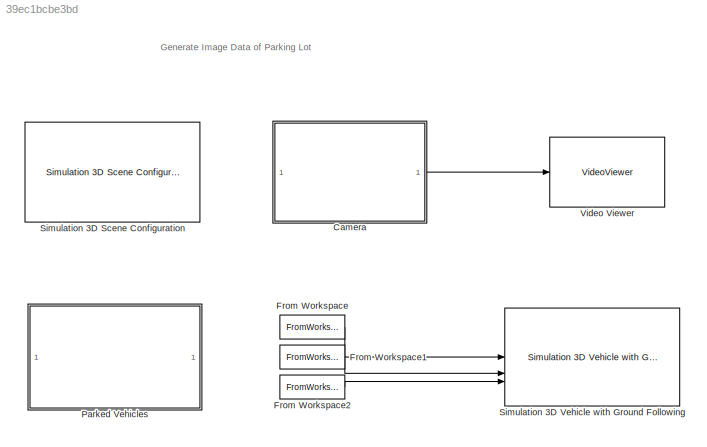
MODEL slx_39ec1bcbe3bd
KIND model
CONFIG AbsTol = auto
CONFIG EnableMultiTasking = off
CONFIG FixedStep = auto
CONFIG MaxStep = auto
CONFIG MinStep = auto
CONFIG RelTol = 1e-3
CONFIG SampleTimeConstraint = Unconstrained
CONFIG SolverName = VariableStepAuto
CONFIG StartTime = 0.0
CONFIG StopTime = 60
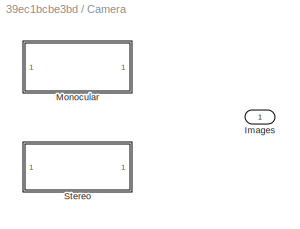
BLOCK [SubSystem] Camera
  Variant = on
BLOCK [Outport] Camera/Images
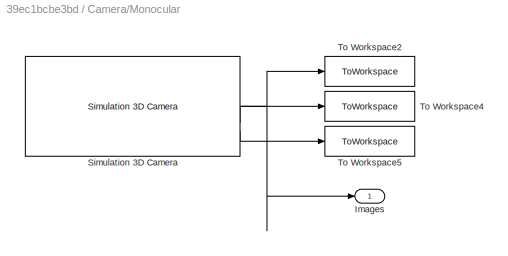
BLOCK [SubSystem] Camera/Monocular
  VariantControl = useMonoCamera == 1
BLOCK [Outport] Camera/Monocular/Images
BLOCK [Reference] Camera/Monocular/Simulation 3D Camera  REF=sim3dcameralib/Simulation 3D Camera
  LibrarySourceBlock = drivingsim3d/Simulation 3D Camera
  Priority = 1
  SourceBlock = sim3dcameralib/Simulation 3D Camera
  SourceType = Simulation 3D Camera
BLOCK [ToWorkspace] Camera/Monocular/To Workspace2
  FixptAsFi = on
  MaxDataPoints = inf
  SampleTime = -1
  SaveFormat = Timeseries
  VariableName = images
BLOCK [ToWorkspace] Camera/Monocular/To Workspace4
  FixptAsFi = on
  MaxDataPoints = inf
  SampleTime = -1
  SaveFormat = Timeseries
  VariableName = location
BLOCK [ToWorkspace] Camera/Monocular/To Workspace5
  FixptAsFi = on
  MaxDataPoints = inf
  SampleTime = -1
  SaveFormat = Timeseries
  VariableName = orientation
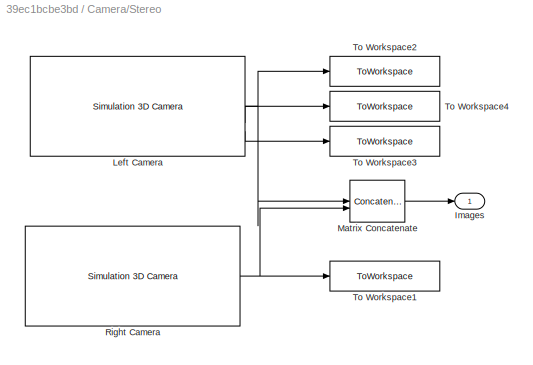
BLOCK [SubSystem] Camera/Stereo
  VariantControl = useMonoCamera == 0
BLOCK [Outport] Camera/Stereo/Images
BLOCK [Reference] Camera/Stereo/Left Camera  REF=sim3dcameralib/Simulation 3D Camera
  LibrarySourceBlock = drivingsim3d/Simulation 3D Camera
  Priority = 1
  SourceBlock = sim3dcameralib/Simulation 3D Camera
  SourceType = Simulation 3D Camera
BLOCK [Concatenate] Camera/Stereo/Matrix Concatenate
  Mode = Multidimensional array
BLOCK [Reference] Camera/Stereo/Right Camera  REF=sim3dcameralib/Simulation 3D Camera
  LibrarySourceBlock = drivingsim3d/Simulation 3D Camera
  Priority = 1
  SourceBlock = sim3dcameralib/Simulation 3D Camera
  SourceType = Simulation 3D Camera
BLOCK [ToWorkspace] Camera/Stereo/To Workspace1
  FixptAsFi = on
  MaxDataPoints = inf
  SampleTime = -1
  SaveFormat = Timeseries
  VariableName = imagesRight
BLOCK [ToWorkspace] Camera/Stereo/To Workspace2
  FixptAsFi = on
  MaxDataPoints = inf
  SampleTime = -1
  SaveFormat = Timeseries
  VariableName = imagesLeft
BLOCK [ToWorkspace] Camera/Stereo/To Workspace3
  FixptAsFi = on
  MaxDataPoints = inf
  SampleTime = -1
  SaveFormat = Timeseries
  VariableName = orientation
BLOCK [ToWorkspace] Camera/Stereo/To Workspace4
  FixptAsFi = on
  MaxDataPoints = inf
  SampleTime = -1
  SaveFormat = Timeseries
  VariableName = location
BLOCK [FromWorkspace] From Workspace
  VariableName = refPosesX
BLOCK [FromWorkspace] From Workspace1
  VariableName = refPosesY
BLOCK [FromWorkspace] From Workspace2
  VariableName = refPosesT
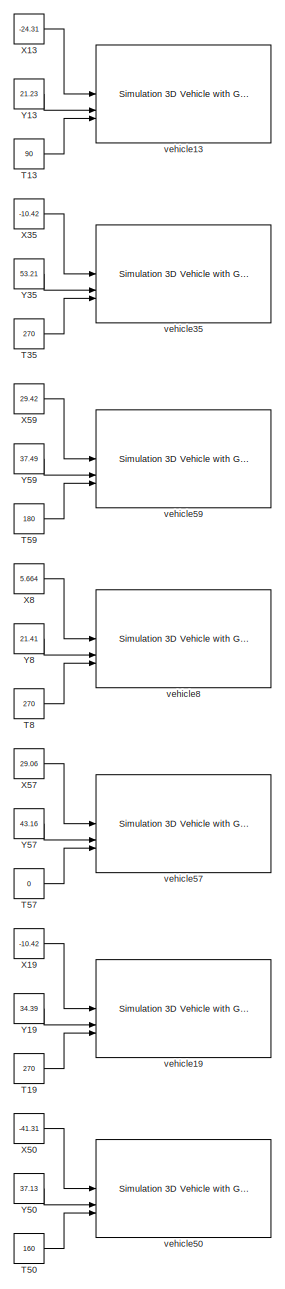
[diagram: Parked Vehicles - part 1/8, full width, top band]
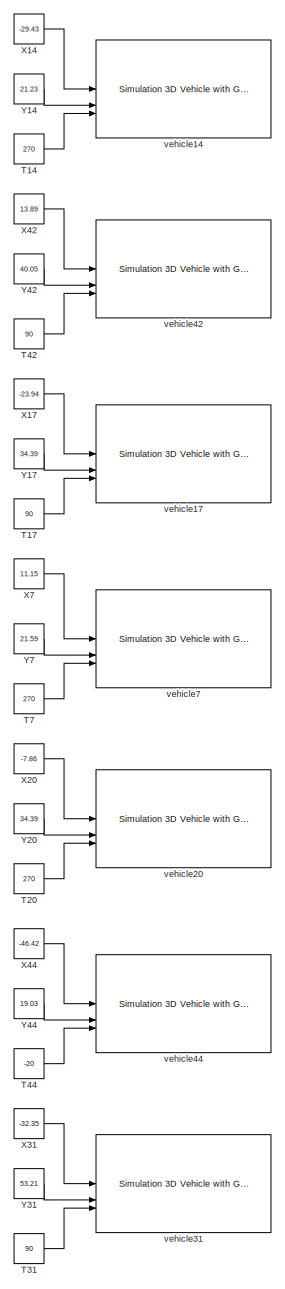
[diagram: Parked Vehicles - part 2/8, full width, top band]
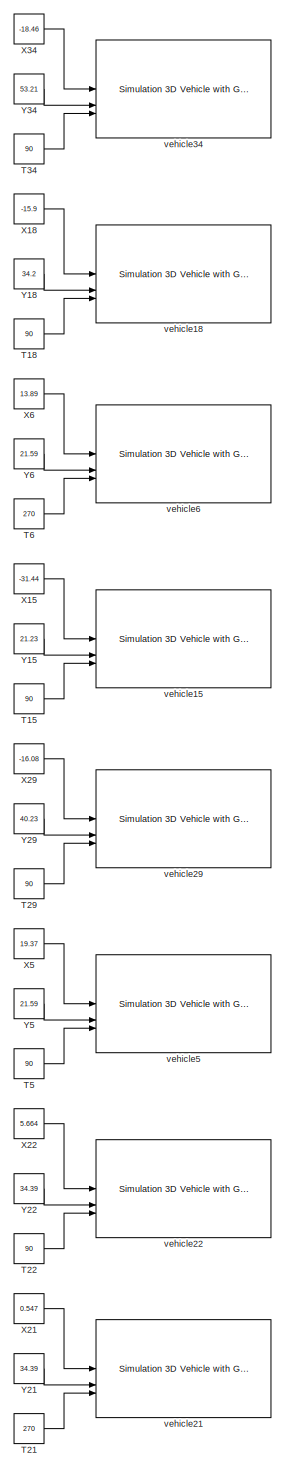
[diagram: Parked Vehicles - part 3/8, full width, top band]
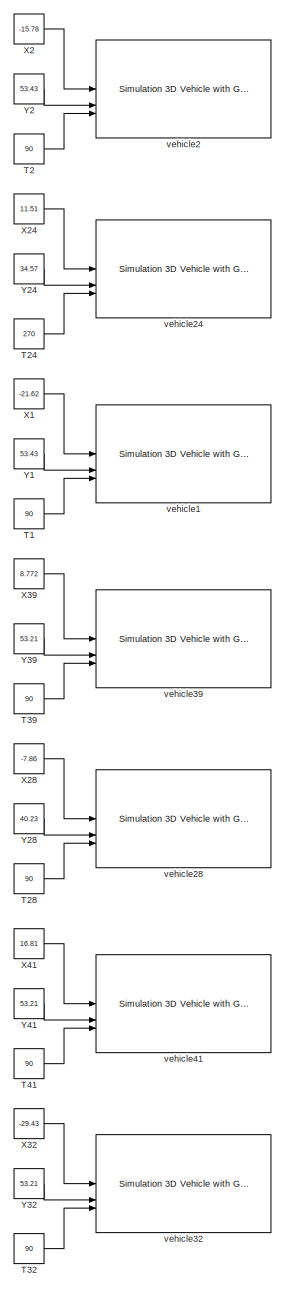
[diagram: Parked Vehicles - part 4/8, full width, middle band]
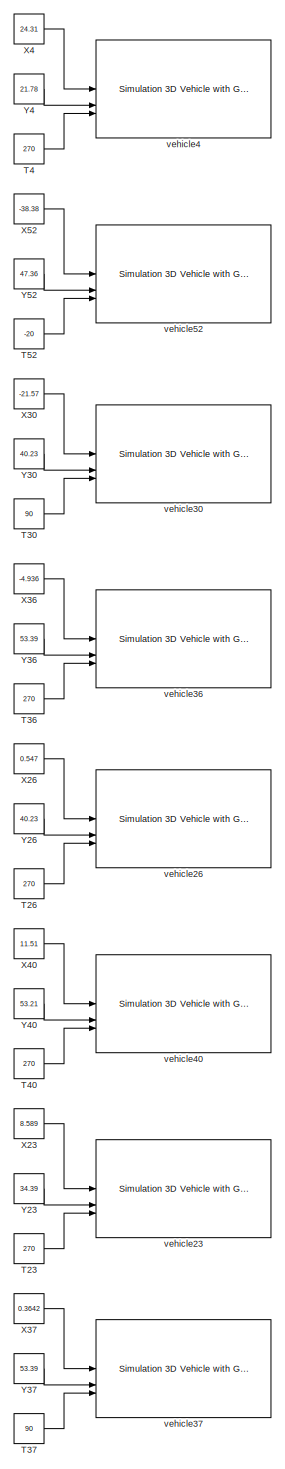
[diagram: Parked Vehicles - part 5/8, full width, middle band]
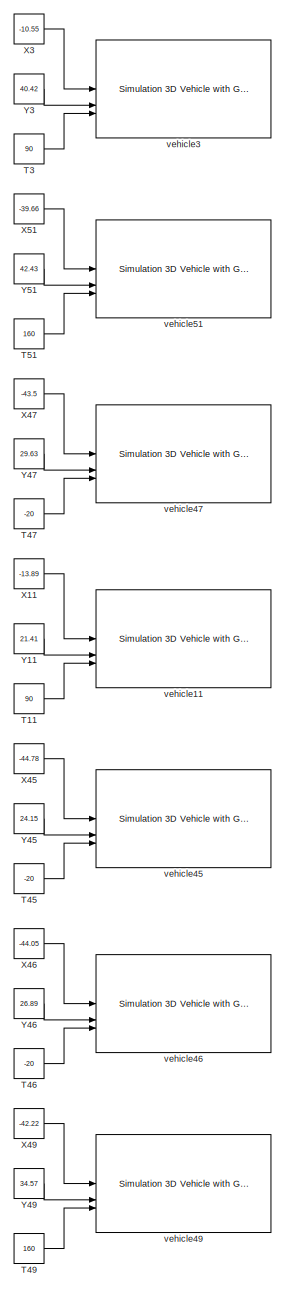
[diagram: Parked Vehicles - part 6/8, full width, bottom band]
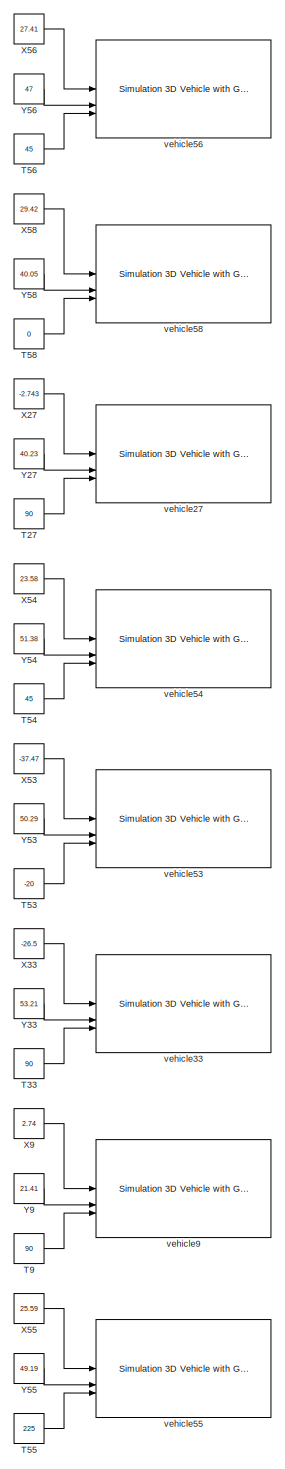
[diagram: Parked Vehicles - part 7/8, full width, bottom band]
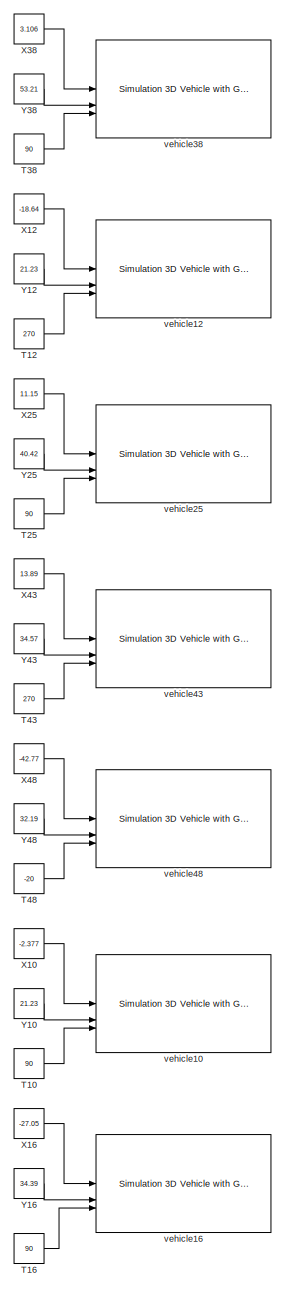
[diagram: Parked Vehicles - part 8/8, full width, bottom band]
BLOCK [SubSystem] Parked Vehicles
BLOCK [Constant] Parked Vehicles/T1
  Value = 90
BLOCK [Constant] Parked Vehicles/T10
  Value = 90
BLOCK [Constant] Parked Vehicles/T11
  Value = 90
BLOCK [Constant] Parked Vehicles/T12
  Value = 270
BLOCK [Constant] Parked Vehicles/T13
  Value = 90
BLOCK [Constant] Parked Vehicles/T14
  Value = 270
BLOCK [Constant] Parked Vehicles/T15
  Value = 90
BLOCK [Constant] Parked Vehicles/T16
  Value = 90
BLOCK [Constant] Parked Vehicles/T17
  Value = 90
BLOCK [Constant] Parked Vehicles/T18
  Value = 90
BLOCK [Constant] Parked Vehicles/T19
  Value = 270
BLOCK [Constant] Parked Vehicles/T2
  Value = 90
BLOCK [Constant] Parked Vehicles/T20
  Value = 270
BLOCK [Constant] Parked Vehicles/T21
  Value = 270
BLOCK [Constant] Parked Vehicles/T22
  Value = 90
BLOCK [Constant] Parked Vehicles/T23
  Value = 270
BLOCK [Constant] Parked Vehicles/T24
  Value = 270
BLOCK [Constant] Parked Vehicles/T25
  Value = 90
BLOCK [Constant] Parked Vehicles/T26
  Value = 270
BLOCK [Constant] Parked Vehicles/T27
  Value = 90
BLOCK [Constant] Parked Vehicles/T28
  Value = 90
BLOCK [Constant] Parked Vehicles/T29
  Value = 90
BLOCK [Constant] Parked Vehicles/T3
  Value = 90
BLOCK [Constant] Parked Vehicles/T30
  Value = 90
BLOCK [Constant] Parked Vehicles/T31
  Value = 90
BLOCK [Constant] Parked Vehicles/T32
  Value = 90
BLOCK [Constant] Parked Vehicles/T33
  Value = 90
BLOCK [Constant] Parked Vehicles/T34
  Value = 90
BLOCK [Constant] Parked Vehicles/T35
  Value = 270
BLOCK [Constant] Parked Vehicles/T36
  Value = 270
BLOCK [Constant] Parked Vehicles/T37
  Value = 90
BLOCK [Constant] Parked Vehicles/T38
  Value = 90
BLOCK [Constant] Parked Vehicles/T39
  Value = 90
BLOCK [Constant] Parked Vehicles/T4
  Value = 270
BLOCK [Constant] Parked Vehicles/T40
  Value = 270
BLOCK [Constant] Parked Vehicles/T41
  Value = 90
BLOCK [Constant] Parked Vehicles/T42
  Value = 90
BLOCK [Constant] Parked Vehicles/T43
  Value = 270
BLOCK [Constant] Parked Vehicles/T44
  Value = -20
BLOCK [Constant] Parked Vehicles/T45
  Value = -20
BLOCK [Constant] Parked Vehicles/T46
  Value = -20
BLOCK [Constant] Parked Vehicles/T47
  Value = -20
BLOCK [Constant] Parked Vehicles/T48
  Value = -20
BLOCK [Constant] Parked Vehicles/T49
  Value = 160
BLOCK [Constant] Parked Vehicles/T5
  Value = 90
BLOCK [Constant] Parked Vehicles/T50
  Value = 160
BLOCK [Constant] Parked Vehicles/T51
  Value = 160
BLOCK [Constant] Parked Vehicles/T52
  Value = -20
BLOCK [Constant] Parked Vehicles/T53
  Value = -20
BLOCK [Constant] Parked Vehicles/T54
  Value = 45
BLOCK [Constant] Parked Vehicles/T55
  Value = 225
BLOCK [Constant] Parked Vehicles/T56
  Value = 45
BLOCK [Constant] Parked Vehicles/T57
  Value = 0
BLOCK [Constant] Parked Vehicles/T58
  Value = 0
BLOCK [Constant] Parked Vehicles/T59
  Value = 180
BLOCK [Constant] Parked Vehicles/T6
  Value = 270
BLOCK [Constant] Parked Vehicles/T7
  Value = 270
BLOCK [Constant] Parked Vehicles/T8
  Value = 270
BLOCK [Constant] Parked Vehicles/T9
  Value = 90
BLOCK [Constant] Parked Vehicles/X1
  Value = -21.62
BLOCK [Constant] Parked Vehicles/X10
  Value = -2.377
BLOCK [Constant] Parked Vehicles/X11
  Value = -13.89
BLOCK [Constant] Parked Vehicles/X12
  Value = -18.64
BLOCK [Constant] Parked Vehicles/X13
  Value = -24.31
BLOCK [Constant] Parked Vehicles/X14
  Value = -29.43
BLOCK [Constant] Parked Vehicles/X15
  Value = -31.44
BLOCK [Constant] Parked Vehicles/X16
  Value = -27.05
BLOCK [Constant] Parked Vehicles/X17
  Value = -23.94
BLOCK [Constant] Parked Vehicles/X18
  Value = -15.9
BLOCK [Constant] Parked Vehicles/X19
  Value = -10.42
BLOCK [Constant] Parked Vehicles/X2
  Value = -15.78
BLOCK [Constant] Parked Vehicles/X20
  Value = -7.86
BLOCK [Constant] Parked Vehicles/X21
  Value = 0.547
BLOCK [Constant] Parked Vehicles/X22
  Value = 5.664
BLOCK [Constant] Parked Vehicles/X23
  Value = 8.589
BLOCK [Constant] Parked Vehicles/X24
  Value = 11.51
BLOCK [Constant] Parked Vehicles/X25
  Value = 11.15
BLOCK [Constant] Parked Vehicles/X26
  Value = 0.547
BLOCK [Constant] Parked Vehicles/X27
  Value = -2.743
BLOCK [Constant] Parked Vehicles/X28
  Value = -7.86
BLOCK [Constant] Parked Vehicles/X29
  Value = -16.08
BLOCK [Constant] Parked Vehicles/X3
  Value = -10.55
BLOCK [Constant] Parked Vehicles/X30
  Value = -21.57
BLOCK [Constant] Parked Vehicles/X31
  Value = -32.35
BLOCK [Constant] Parked Vehicles/X32
  Value = -29.43
BLOCK [Constant] Parked Vehicles/X33
  Value = -26.5
BLOCK [Constant] Parked Vehicles/X34
  Value = -18.46
BLOCK [Constant] Parked Vehicles/X35
  Value = -10.42
BLOCK [Constant] Parked Vehicles/X36
  Value = -4.936
BLOCK [Constant] Parked Vehicles/X37
  Value = 0.3642
BLOCK [Constant] Parked Vehicles/X38
  Value = 3.106
BLOCK [Constant] Parked Vehicles/X39
  Value = 8.772
BLOCK [Constant] Parked Vehicles/X4
  Value = 24.31
BLOCK [Constant] Parked Vehicles/X40
  Value = 11.51
BLOCK [Constant] Parked Vehicles/X41
  Value = 16.81
BLOCK [Constant] Parked Vehicles/X42
  Value = 13.89
BLOCK [Constant] Parked Vehicles/X43
  Value = 13.89
BLOCK [Constant] Parked Vehicles/X44
  Value = -46.42
BLOCK [Constant] Parked Vehicles/X45
  Value = -44.78
BLOCK [Constant] Parked Vehicles/X46
  Value = -44.05
BLOCK [Constant] Parked Vehicles/X47
  Value = -43.5
BLOCK [Constant] Parked Vehicles/X48
  Value = -42.77
BLOCK [Constant] Parked Vehicles/X49
  Value = -42.22
BLOCK [Constant] Parked Vehicles/X5
  Value = 19.37
BLOCK [Constant] Parked Vehicles/X50
  Value = -41.31
BLOCK [Constant] Parked Vehicles/X51
  Value = -39.66
BLOCK [Constant] Parked Vehicles/X52
  Value = -38.38
BLOCK [Constant] Parked Vehicles/X53
  Value = -37.47
BLOCK [Constant] Parked Vehicles/X54
  Value = 23.58
BLOCK [Constant] Parked Vehicles/X55
  Value = 25.59
BLOCK [Constant] Parked Vehicles/X56
  Value = 27.41
BLOCK [Constant] Parked Vehicles/X57
  Value = 29.06
BLOCK [Constant] Parked Vehicles/X58
  Value = 29.42
BLOCK [Constant] Parked Vehicles/X59
  Value = 29.42
BLOCK [Constant] Parked Vehicles/X6
  Value = 13.89
BLOCK [Constant] Parked Vehicles/X7
  Value = 11.15
BLOCK [Constant] Parked Vehicles/X8
  Value = 5.664
BLOCK [Constant] Parked Vehicles/X9
  Value = 2.74
BLOCK [Constant] Parked Vehicles/Y1
  Value = 53.43
BLOCK [Constant] Parked Vehicles/Y10
  Value = 21.23
BLOCK [Constant] Parked Vehicles/Y11
  Value = 21.41
BLOCK [Constant] Parked Vehicles/Y12
  Value = 21.23
BLOCK [Constant] Parked Vehicles/Y13
  Value = 21.23
BLOCK [Constant] Parked Vehicles/Y14
  Value = 21.23
BLOCK [Constant] Parked Vehicles/Y15
  Value = 21.23
BLOCK [Constant] Parked Vehicles/Y16
  Value = 34.39
BLOCK [Constant] Parked Vehicles/Y17
  Value = 34.39
BLOCK [Constant] Parked Vehicles/Y18
  Value = 34.2
BLOCK [Constant] Parked Vehicles/Y19
  Value = 34.39
BLOCK [Constant] Parked Vehicles/Y2
  Value = 53.43
BLOCK [Constant] Parked Vehicles/Y20
  Value = 34.39
BLOCK [Constant] Parked Vehicles/Y21
  Value = 34.39
BLOCK [Constant] Parked Vehicles/Y22
  Value = 34.39
BLOCK [Constant] Parked Vehicles/Y23
  Value = 34.39
BLOCK [Constant] Parked Vehicles/Y24
  Value = 34.57
BLOCK [Constant] Parked Vehicles/Y25
  Value = 40.42
BLOCK [Constant] Parked Vehicles/Y26
  Value = 40.23
BLOCK [Constant] Parked Vehicles/Y27
  Value = 40.23
BLOCK [Constant] Parked Vehicles/Y28
  Value = 40.23
BLOCK [Constant] Parked Vehicles/Y29
  Value = 40.23
BLOCK [Constant] Parked Vehicles/Y3
  Value = 40.42
BLOCK [Constant] Parked Vehicles/Y30
  Value = 40.23
BLOCK [Constant] Parked Vehicles/Y31
  Value = 53.21
BLOCK [Constant] Parked Vehicles/Y32
  Value = 53.21
BLOCK [Constant] Parked Vehicles/Y33
  Value = 53.21
BLOCK [Constant] Parked Vehicles/Y34
  Value = 53.21
BLOCK [Constant] Parked Vehicles/Y35
  Value = 53.21
BLOCK [Constant] Parked Vehicles/Y36
  Value = 53.39
BLOCK [Constant] Parked Vehicles/Y37
  Value = 53.39
BLOCK [Constant] Parked Vehicles/Y38
  Value = 53.21
BLOCK [Constant] Parked Vehicles/Y39
  Value = 53.21
BLOCK [Constant] Parked Vehicles/Y4
  Value = 21.78
BLOCK [Constant] Parked Vehicles/Y40
  Value = 53.21
BLOCK [Constant] Parked Vehicles/Y41
  Value = 53.21
BLOCK [Constant] Parked Vehicles/Y42
  Value = 40.05
BLOCK [Constant] Parked Vehicles/Y43
  Value = 34.57
BLOCK [Constant] Parked Vehicles/Y44
  Value = 19.03
BLOCK [Constant] Parked Vehicles/Y45
  Value = 24.15
BLOCK [Constant] Parked Vehicles/Y46
  Value = 26.89
BLOCK [Constant] Parked Vehicles/Y47
  Value = 29.63
BLOCK [Constant] Parked Vehicles/Y48
  Value = 32.19
BLOCK [Constant] Parked Vehicles/Y49
  Value = 34.57
BLOCK [Constant] Parked Vehicles/Y5
  Value = 21.59
BLOCK [Constant] Parked Vehicles/Y50
  Value = 37.13
BLOCK [Constant] Parked Vehicles/Y51
  Value = 42.43
BLOCK [Constant] Parked Vehicles/Y52
  Value = 47.36
BLOCK [Constant] Parked Vehicles/Y53
  Value = 50.29
BLOCK [Constant] Parked Vehicles/Y54
  Value = 51.38
BLOCK [Constant] Parked Vehicles/Y55
  Value = 49.19
BLOCK [Constant] Parked Vehicles/Y56
  Value = 47
BLOCK [Constant] Parked Vehicles/Y57
  Value = 43.16
BLOCK [Constant] Parked Vehicles/Y58
  Value = 40.05
BLOCK [Constant] Parked Vehicles/Y59
  Value = 37.49
BLOCK [Constant] Parked Vehicles/Y6
  Value = 21.59
BLOCK [Constant] Parked Vehicles/Y7
  Value = 21.59
BLOCK [Constant] Parked Vehicles/Y8
  Value = 21.41
BLOCK [Constant] Parked Vehicles/Y9
  Value = 21.41
BLOCK [Reference] Parked Vehicles/vehicle1  REF=sim3dautolib/Simulation 3D Vehicle with Ground Following
  LibrarySourceBlock = drivingsim3d/Simulation 3D Vehicle with Ground Following
  Priority = -1
  SourceBlock = sim3dautolib/Simulation 3D Vehicle with Ground Following
  SourceType = Simulation 3D Vehicle with Ground Following
BLOCK [Reference] Parked Vehicles/vehicle10  REF=sim3dautolib/Simulation 3D Vehicle with Ground Following
  LibrarySourceBlock = drivingsim3d/Simulation 3D Vehicle with Ground Following
  Priority = -1
  SourceBlock = sim3dautolib/Simulation 3D Vehicle with Ground Following
  SourceType = Simulation 3D Vehicle with Ground Following
BLOCK [Reference] Parked Vehicles/vehicle11  REF=sim3dautolib/Simulation 3D Vehicle with Ground Following
  LibrarySourceBlock = drivingsim3d/Simulation 3D Vehicle with Ground Following
  Priority = -1
  SourceBlock = sim3dautolib/Simulation 3D Vehicle with Ground Following
  SourceType = Simulation 3D Vehicle with Ground Following
BLOCK [Reference] Parked Vehicles/vehicle12  REF=sim3dautolib/Simulation 3D Vehicle with Ground Following
  LibrarySourceBlock = drivingsim3d/Simulation 3D Vehicle with Ground Following
  Priority = -1
  SourceBlock = sim3dautolib/Simulation 3D Vehicle with Ground Following
  SourceType = Simulation 3D Vehicle with Ground Following
BLOCK [Reference] Parked Vehicles/vehicle13  REF=sim3dautolib/Simulation 3D Vehicle with Ground Following
  LibrarySourceBlock = drivingsim3d/Simulation 3D Vehicle with Ground Following
  Priority = -1
  SourceBlock = sim3dautolib/Simulation 3D Vehicle with Ground Following
  SourceType = Simulation 3D Vehicle with Ground Following
BLOCK [Reference] Parked Vehicles/vehicle14  REF=sim3dautolib/Simulation 3D Vehicle with Ground Following
  LibrarySourceBlock = drivingsim3d/Simulation 3D Vehicle with Ground Following
  Priority = -1
  SourceBlock = sim3dautolib/Simulation 3D Vehicle with Ground Following
  SourceType = Simulation 3D Vehicle with Ground Following
BLOCK [Reference] Parked Vehicles/vehicle15  REF=sim3dautolib/Simulation 3D Vehicle with Ground Following
  LibrarySourceBlock = drivingsim3d/Simulation 3D Vehicle with Ground Following
  Priority = -1
  SourceBlock = sim3dautolib/Simulation 3D Vehicle with Ground Following
  SourceType = Simulation 3D Vehicle with Ground Following
BLOCK [Reference] Parked Vehicles/vehicle16  REF=sim3dautolib/Simulation 3D Vehicle with Ground Following
  LibrarySourceBlock = drivingsim3d/Simulation 3D Vehicle with Ground Following
  Priority = -1
  SourceBlock = sim3dautolib/Simulation 3D Vehicle with Ground Following
  SourceType = Simulation 3D Vehicle with Ground Following
BLOCK [Reference] Parked Vehicles/vehicle17  REF=sim3dautolib/Simulation 3D Vehicle with Ground Following
  LibrarySourceBlock = drivingsim3d/Simulation 3D Vehicle with Ground Following
  Priority = -1
  SourceBlock = sim3dautolib/Simulation 3D Vehicle with Ground Following
  SourceType = Simulation 3D Vehicle with Ground Following
BLOCK [Reference] Parked Vehicles/vehicle18  REF=sim3dautolib/Simulation 3D Vehicle with Ground Following
  LibrarySourceBlock = drivingsim3d/Simulation 3D Vehicle with Ground Following
  Priority = -1
  SourceBlock = sim3dautolib/Simulation 3D Vehicle with Ground Following
  SourceType = Simulation 3D Vehicle with Ground Following
BLOCK [Reference] Parked Vehicles/vehicle19  REF=sim3dautolib/Simulation 3D Vehicle with Ground Following
  LibrarySourceBlock = drivingsim3d/Simulation 3D Vehicle with Ground Following
  Priority = -1
  SourceBlock = sim3dautolib/Simulation 3D Vehicle with Ground Following
  SourceType = Simulation 3D Vehicle with Ground Following
BLOCK [Reference] Parked Vehicles/vehicle2  REF=sim3dautolib/Simulation 3D Vehicle with Ground Following
  LibrarySourceBlock = drivingsim3d/Simulation 3D Vehicle with Ground Following
  Priority = -1
  SourceBlock = sim3dautolib/Simulation 3D Vehicle with Ground Following
  SourceType = Simulation 3D Vehicle with Ground Following
BLOCK [Reference] Parked Vehicles/vehicle20  REF=sim3dautolib/Simulation 3D Vehicle with Ground Following
  LibrarySourceBlock = drivingsim3d/Simulation 3D Vehicle with Ground Following
  Priority = -1
  SourceBlock = sim3dautolib/Simulation 3D Vehicle with Ground Following
  SourceType = Simulation 3D Vehicle with Ground Following
BLOCK [Reference] Parked Vehicles/vehicle21  REF=sim3dautolib/Simulation 3D Vehicle with Ground Following
  LibrarySourceBlock = drivingsim3d/Simulation 3D Vehicle with Ground Following
  Priority = -1
  SourceBlock = sim3dautolib/Simulation 3D Vehicle with Ground Following
  SourceType = Simulation 3D Vehicle with Ground Following
BLOCK [Reference] Parked Vehicles/vehicle22  REF=sim3dautolib/Simulation 3D Vehicle with Ground Following
  LibrarySourceBlock = drivingsim3d/Simulation 3D Vehicle with Ground Following
  Priority = -1
  SourceBlock = sim3dautolib/Simulation 3D Vehicle with Ground Following
  SourceType = Simulation 3D Vehicle with Ground Following
BLOCK [Reference] Parked Vehicles/vehicle23  REF=sim3dautolib/Simulation 3D Vehicle with Ground Following
  LibrarySourceBlock = drivingsim3d/Simulation 3D Vehicle with Ground Following
  Priority = -1
  SourceBlock = sim3dautolib/Simulation 3D Vehicle with Ground Following
  SourceType = Simulation 3D Vehicle with Ground Following
BLOCK [Reference] Parked Vehicles/vehicle24  REF=sim3dautolib/Simulation 3D Vehicle with Ground Following
  LibrarySourceBlock = drivingsim3d/Simulation 3D Vehicle with Ground Following
  Priority = -1
  SourceBlock = sim3dautolib/Simulation 3D Vehicle with Ground Following
  SourceType = Simulation 3D Vehicle with Ground Following
BLOCK [Reference] Parked Vehicles/vehicle25  REF=sim3dautolib/Simulation 3D Vehicle with Ground Following
  LibrarySourceBlock = drivingsim3d/Simulation 3D Vehicle with Ground Following
  Priority = -1
  SourceBlock = sim3dautolib/Simulation 3D Vehicle with Ground Following
  SourceType = Simulation 3D Vehicle with Ground Following
BLOCK [Reference] Parked Vehicles/vehicle26  REF=sim3dautolib/Simulation 3D Vehicle with Ground Following
  LibrarySourceBlock = drivingsim3d/Simulation 3D Vehicle with Ground Following
  Priority = -1
  SourceBlock = sim3dautolib/Simulation 3D Vehicle with Ground Following
  SourceType = Simulation 3D Vehicle with Ground Following
BLOCK [Reference] Parked Vehicles/vehicle27  REF=sim3dautolib/Simulation 3D Vehicle with Ground Following
  LibrarySourceBlock = drivingsim3d/Simulation 3D Vehicle with Ground Following
  Priority = -1
  SourceBlock = sim3dautolib/Simulation 3D Vehicle with Ground Following
  SourceType = Simulation 3D Vehicle with Ground Following
BLOCK [Reference] Parked Vehicles/vehicle28  REF=sim3dautolib/Simulation 3D Vehicle with Ground Following
  LibrarySourceBlock = drivingsim3d/Simulation 3D Vehicle with Ground Following
  Priority = -1
  SourceBlock = sim3dautolib/Simulation 3D Vehicle with Ground Following
  SourceType = Simulation 3D Vehicle with Ground Following
BLOCK [Reference] Parked Vehicles/vehicle29  REF=sim3dautolib/Simulation 3D Vehicle with Ground Following
  LibrarySourceBlock = drivingsim3d/Simulation 3D Vehicle with Ground Following
  Priority = -1
  SourceBlock = sim3dautolib/Simulation 3D Vehicle with Ground Following
  SourceType = Simulation 3D Vehicle with Ground Following
BLOCK [Reference] Parked Vehicles/vehicle3  REF=sim3dautolib/Simulation 3D Vehicle with Ground Following
  LibrarySourceBlock = drivingsim3d/Simulation 3D Vehicle with Ground Following
  Priority = -1
  SourceBlock = sim3dautolib/Simulation 3D Vehicle with Ground Following
  SourceType = Simulation 3D Vehicle with Ground Following
BLOCK [Reference] Parked Vehicles/vehicle30  REF=sim3dautolib/Simulation 3D Vehicle with Ground Following
  LibrarySourceBlock = drivingsim3d/Simulation 3D Vehicle with Ground Following
  Priority = -1
  SourceBlock = sim3dautolib/Simulation 3D Vehicle with Ground Following
  SourceType = Simulation 3D Vehicle with Ground Following
BLOCK [Reference] Parked Vehicles/vehicle31  REF=sim3dautolib/Simulation 3D Vehicle with Ground Following
  LibrarySourceBlock = drivingsim3d/Simulation 3D Vehicle with Ground Following
  Priority = -1
  SourceBlock = sim3dautolib/Simulation 3D Vehicle with Ground Following
  SourceType = Simulation 3D Vehicle with Ground Following
BLOCK [Reference] Parked Vehicles/vehicle32  REF=sim3dautolib/Simulation 3D Vehicle with Ground Following
  LibrarySourceBlock = drivingsim3d/Simulation 3D Vehicle with Ground Following
  Priority = -1
  SourceBlock = sim3dautolib/Simulation 3D Vehicle with Ground Following
  SourceType = Simulation 3D Vehicle with Ground Following
BLOCK [Reference] Parked Vehicles/vehicle33  REF=sim3dautolib/Simulation 3D Vehicle with Ground Following
  LibrarySourceBlock = drivingsim3d/Simulation 3D Vehicle with Ground Following
  Priority = -1
  SourceBlock = sim3dautolib/Simulation 3D Vehicle with Ground Following
  SourceType = Simulation 3D Vehicle with Ground Following
BLOCK [Reference] Parked Vehicles/vehicle34  REF=sim3dautolib/Simulation 3D Vehicle with Ground Following
  LibrarySourceBlock = drivingsim3d/Simulation 3D Vehicle with Ground Following
  Priority = -1
  SourceBlock = sim3dautolib/Simulation 3D Vehicle with Ground Following
  SourceType = Simulation 3D Vehicle with Ground Following
BLOCK [Reference] Parked Vehicles/vehicle35  REF=sim3dautolib/Simulation 3D Vehicle with Ground Following
  LibrarySourceBlock = drivingsim3d/Simulation 3D Vehicle with Ground Following
  Priority = -1
  SourceBlock = sim3dautolib/Simulation 3D Vehicle with Ground Following
  SourceType = Simulation 3D Vehicle with Ground Following
BLOCK [Reference] Parked Vehicles/vehicle36  REF=sim3dautolib/Simulation 3D Vehicle with Ground Following
  LibrarySourceBlock = drivingsim3d/Simulation 3D Vehicle with Ground Following
  Priority = -1
  SourceBlock = sim3dautolib/Simulation 3D Vehicle with Ground Following
  SourceType = Simulation 3D Vehicle with Ground Following
BLOCK [Reference] Parked Vehicles/vehicle37  REF=sim3dautolib/Simulation 3D Vehicle with Ground Following
  LibrarySourceBlock = drivingsim3d/Simulation 3D Vehicle with Ground Following
  Priority = -1
  SourceBlock = sim3dautolib/Simulation 3D Vehicle with Ground Following
  SourceType = Simulation 3D Vehicle with Ground Following
BLOCK [Reference] Parked Vehicles/vehicle38  REF=sim3dautolib/Simulation 3D Vehicle with Ground Following
  LibrarySourceBlock = drivingsim3d/Simulation 3D Vehicle with Ground Following
  Priority = -1
  SourceBlock = sim3dautolib/Simulation 3D Vehicle with Ground Following
  SourceType = Simulation 3D Vehicle with Ground Following
BLOCK [Reference] Parked Vehicles/vehicle39  REF=sim3dautolib/Simulation 3D Vehicle with Ground Following
  LibrarySourceBlock = drivingsim3d/Simulation 3D Vehicle with Ground Following
  Priority = -1
  SourceBlock = sim3dautolib/Simulation 3D Vehicle with Ground Following
  SourceType = Simulation 3D Vehicle with Ground Following
BLOCK [Reference] Parked Vehicles/vehicle4  REF=sim3dautolib/Simulation 3D Vehicle with Ground Following
  LibrarySourceBlock = drivingsim3d/Simulation 3D Vehicle with Ground Following
  Priority = -1
  SourceBlock = sim3dautolib/Simulation 3D Vehicle with Ground Following
  SourceType = Simulation 3D Vehicle with Ground Following
BLOCK [Reference] Parked Vehicles/vehicle40  REF=sim3dautolib/Simulation 3D Vehicle with Ground Following
  LibrarySourceBlock = drivingsim3d/Simulation 3D Vehicle with Ground Following
  Priority = -1
  SourceBlock = sim3dautolib/Simulation 3D Vehicle with Ground Following
  SourceType = Simulation 3D Vehicle with Ground Following
BLOCK [Reference] Parked Vehicles/vehicle41  REF=sim3dautolib/Simulation 3D Vehicle with Ground Following
  LibrarySourceBlock = drivingsim3d/Simulation 3D Vehicle with Ground Following
  Priority = -1
  SourceBlock = sim3dautolib/Simulation 3D Vehicle with Ground Following
  SourceType = Simulation 3D Vehicle with Ground Following
BLOCK [Reference] Parked Vehicles/vehicle42  REF=sim3dautolib/Simulation 3D Vehicle with Ground Following
  LibrarySourceBlock = drivingsim3d/Simulation 3D Vehicle with Ground Following
  Priority = -1
  SourceBlock = sim3dautolib/Simulation 3D Vehicle with Ground Following
  SourceType = Simulation 3D Vehicle with Ground Following
BLOCK [Reference] Parked Vehicles/vehicle43  REF=sim3dautolib/Simulation 3D Vehicle with Ground Following
  LibrarySourceBlock = drivingsim3d/Simulation 3D Vehicle with Ground Following
  Priority = -1
  SourceBlock = sim3dautolib/Simulation 3D Vehicle with Ground Following
  SourceType = Simulation 3D Vehicle with Ground Following
BLOCK [Reference] Parked Vehicles/vehicle44  REF=sim3dautolib/Simulation 3D Vehicle with Ground Following
  LibrarySourceBlock = drivingsim3d/Simulation 3D Vehicle with Ground Following
  Priority = -1
  SourceBlock = sim3dautolib/Simulation 3D Vehicle with Ground Following
  SourceType = Simulation 3D Vehicle with Ground Following
BLOCK [Reference] Parked Vehicles/vehicle45  REF=sim3dautolib/Simulation 3D Vehicle with Ground Following
  LibrarySourceBlock = drivingsim3d/Simulation 3D Vehicle with Ground Following
  Priority = -1
  SourceBlock = sim3dautolib/Simulation 3D Vehicle with Ground Following
  SourceType = Simulation 3D Vehicle with Ground Following
BLOCK [Reference] Parked Vehicles/vehicle46  REF=sim3dautolib/Simulation 3D Vehicle with Ground Following
  LibrarySourceBlock = drivingsim3d/Simulation 3D Vehicle with Ground Following
  Priority = -1
  SourceBlock = sim3dautolib/Simulation 3D Vehicle with Ground Following
  SourceType = Simulation 3D Vehicle with Ground Following
BLOCK [Reference] Parked Vehicles/vehicle47  REF=sim3dautolib/Simulation 3D Vehicle with Ground Following
  LibrarySourceBlock = drivingsim3d/Simulation 3D Vehicle with Ground Following
  Priority = -1
  SourceBlock = sim3dautolib/Simulation 3D Vehicle with Ground Following
  SourceType = Simulation 3D Vehicle with Ground Following
BLOCK [Reference] Parked Vehicles/vehicle48  REF=sim3dautolib/Simulation 3D Vehicle with Ground Following
  LibrarySourceBlock = drivingsim3d/Simulation 3D Vehicle with Ground Following
  Priority = -1
  SourceBlock = sim3dautolib/Simulation 3D Vehicle with Ground Following
  SourceType = Simulation 3D Vehicle with Ground Following
BLOCK [Reference] Parked Vehicles/vehicle49  REF=sim3dautolib/Simulation 3D Vehicle with Ground Following
  LibrarySourceBlock = drivingsim3d/Simulation 3D Vehicle with Ground Following
  Priority = -1
  SourceBlock = sim3dautolib/Simulation 3D Vehicle with Ground Following
  SourceType = Simulation 3D Vehicle with Ground Following
BLOCK [Reference] Parked Vehicles/vehicle5  REF=sim3dautolib/Simulation 3D Vehicle with Ground Following
  LibrarySourceBlock = drivingsim3d/Simulation 3D Vehicle with Ground Following
  Priority = -1
  SourceBlock = sim3dautolib/Simulation 3D Vehicle with Ground Following
  SourceType = Simulation 3D Vehicle with Ground Following
BLOCK [Reference] Parked Vehicles/vehicle50  REF=sim3dautolib/Simulation 3D Vehicle with Ground Following
  LibrarySourceBlock = drivingsim3d/Simulation 3D Vehicle with Ground Following
  Priority = -1
  SourceBlock = sim3dautolib/Simulation 3D Vehicle with Ground Following
  SourceType = Simulation 3D Vehicle with Ground Following
BLOCK [Reference] Parked Vehicles/vehicle51  REF=sim3dautolib/Simulation 3D Vehicle with Ground Following
  LibrarySourceBlock = drivingsim3d/Simulation 3D Vehicle with Ground Following
  Priority = -1
  SourceBlock = sim3dautolib/Simulation 3D Vehicle with Ground Following
  SourceType = Simulation 3D Vehicle with Ground Following
BLOCK [Reference] Parked Vehicles/vehicle52  REF=sim3dautolib/Simulation 3D Vehicle with Ground Following
  LibrarySourceBlock = drivingsim3d/Simulation 3D Vehicle with Ground Following
  Priority = -1
  SourceBlock = sim3dautolib/Simulation 3D Vehicle with Ground Following
  SourceType = Simulation 3D Vehicle with Ground Following
BLOCK [Reference] Parked Vehicles/vehicle53  REF=sim3dautolib/Simulation 3D Vehicle with Ground Following
  LibrarySourceBlock = drivingsim3d/Simulation 3D Vehicle with Ground Following
  Priority = -1
  SourceBlock = sim3dautolib/Simulation 3D Vehicle with Ground Following
  SourceType = Simulation 3D Vehicle with Ground Following
BLOCK [Reference] Parked Vehicles/vehicle54  REF=sim3dautolib/Simulation 3D Vehicle with Ground Following
  LibrarySourceBlock = drivingsim3d/Simulation 3D Vehicle with Ground Following
  Priority = -1
  SourceBlock = sim3dautolib/Simulation 3D Vehicle with Ground Following
  SourceType = Simulation 3D Vehicle with Ground Following
BLOCK [Reference] Parked Vehicles/vehicle55  REF=sim3dautolib/Simulation 3D Vehicle with Ground Following
  LibrarySourceBlock = drivingsim3d/Simulation 3D Vehicle with Ground Following
  Priority = -1
  SourceBlock = sim3dautolib/Simulation 3D Vehicle with Ground Following
  SourceType = Simulation 3D Vehicle with Ground Following
BLOCK [Reference] Parked Vehicles/vehicle56  REF=sim3dautolib/Simulation 3D Vehicle with Ground Following
  LibrarySourceBlock = drivingsim3d/Simulation 3D Vehicle with Ground Following
  Priority = -1
  SourceBlock = sim3dautolib/Simulation 3D Vehicle with Ground Following
  SourceType = Simulation 3D Vehicle with Ground Following
BLOCK [Reference] Parked Vehicles/vehicle57  REF=sim3dautolib/Simulation 3D Vehicle with Ground Following
  LibrarySourceBlock = drivingsim3d/Simulation 3D Vehicle with Ground Following
  Priority = -1
  SourceBlock = sim3dautolib/Simulation 3D Vehicle with Ground Following
  SourceType = Simulation 3D Vehicle with Ground Following
BLOCK [Reference] Parked Vehicles/vehicle58  REF=sim3dautolib/Simulation 3D Vehicle with Ground Following
  LibrarySourceBlock = drivingsim3d/Simulation 3D Vehicle with Ground Following
  Priority = -1
  SourceBlock = sim3dautolib/Simulation 3D Vehicle with Ground Following
  SourceType = Simulation 3D Vehicle with Ground Following
BLOCK [Reference] Parked Vehicles/vehicle59  REF=sim3dautolib/Simulation 3D Vehicle with Ground Following
  LibrarySourceBlock = drivingsim3d/Simulation 3D Vehicle with Ground Following
  Priority = -1
  SourceBlock = sim3dautolib/Simulation 3D Vehicle with Ground Following
  SourceType = Simulation 3D Vehicle with Ground Following
BLOCK [Reference] Parked Vehicles/vehicle6  REF=sim3dautolib/Simulation 3D Vehicle with Ground Following
  LibrarySourceBlock = drivingsim3d/Simulation 3D Vehicle with Ground Following
  Priority = -1
  SourceBlock = sim3dautolib/Simulation 3D Vehicle with Ground Following
  SourceType = Simulation 3D Vehicle with Ground Following
BLOCK [Reference] Parked Vehicles/vehicle7  REF=sim3dautolib/Simulation 3D Vehicle with Ground Following
  LibrarySourceBlock = drivingsim3d/Simulation 3D Vehicle with Ground Following
  Priority = -1
  SourceBlock = sim3dautolib/Simulation 3D Vehicle with Ground Following
  SourceType = Simulation 3D Vehicle with Ground Following
BLOCK [Reference] Parked Vehicles/vehicle8  REF=sim3dautolib/Simulation 3D Vehicle with Ground Following
  LibrarySourceBlock = drivingsim3d/Simulation 3D Vehicle with Ground Following
  Priority = -1
  SourceBlock = sim3dautolib/Simulation 3D Vehicle with Ground Following
  SourceType = Simulation 3D Vehicle with Ground Following
BLOCK [Reference] Parked Vehicles/vehicle9  REF=sim3dautolib/Simulation 3D Vehicle with Ground Following
  LibrarySourceBlock = drivingsim3d/Simulation 3D Vehicle with Ground Following
  Priority = -1
  SourceBlock = sim3dautolib/Simulation 3D Vehicle with Ground Following
  SourceType = Simulation 3D Vehicle with Ground Following
BLOCK [Reference] Simulation 3D Scene Configuration  REF=sim3dlib/Simulation 3D Scene Configuration
  LibrarySourceBlock = drivingsim3d/Simulation 3D Scene Configuration
  Priority = 0
  SourceBlock = sim3dlib/Simulation 3D Scene Configuration
  SourceType = Simulation 3D Scene Configuration
BLOCK [Reference] Simulation 3D Vehicle with Ground Following  REF=sim3dautolib/Simulation 3D Vehicle with Ground Following
  LibrarySourceBlock = drivingsim3d/Simulation 3D Vehicle with Ground Following
  Priority = -1
  SourceBlock = sim3dautolib/Simulation 3D Vehicle with Ground Following
  SourceType = Simulation 3D Vehicle with Ground Following
BLOCK [VideoViewer] Video Viewer
  FigPos = [337 979 1214 789]
  ScopeSpecificationString = vipscopes.VideoViewerScopeCfg('CurrentConfiguration', extmgr.ConfigurationSet(extmgr.Configuration('Core','General UI',true),extmgr.Configuration('Core','Source UI',true),extmgr.Configuration('Sources','WiredSimulink',true),extmgr.Configuration('Sources','File',false),extmgr.Configuration('Sources','Workspace',false),extmgr.Configuration('Sources','Streaming',false),extmgr.Configuration('Sources',...<+595ch>
  colormapValue = gray(256)
ANNOTATION (root): Generate Image Data of Parking Lot
NET Camera/Monocular/Simulation 3D Camera:1 -> Camera/Monocular/Images:1, Camera/Monocular/To Workspace2:1
LINE Camera/Monocular/Simulation 3D Camera:2 -> Camera/Monocular/To Workspace4:1
LINE Camera/Monocular/Simulation 3D Camera:3 -> Camera/Monocular/To Workspace5:1
NET Camera/Stereo/Left Camera:1 -> Camera/Stereo/Matrix Concatenate:1, Camera/Stereo/To Workspace2:1
LINE Camera/Stereo/Left Camera:2 -> Camera/Stereo/To Workspace4:1
LINE Camera/Stereo/Left Camera:3 -> Camera/Stereo/To Workspace3:1
LINE Camera/Stereo/Matrix Concatenate:1 -> Camera/Stereo/Images:1
NET Camera/Stereo/Right Camera:1 -> Camera/Stereo/Matrix Concatenate:2, Camera/Stereo/To Workspace1:1
LINE Camera:1 -> Video Viewer:1
LINE From Workspace1:1 -> Simulation 3D Vehicle with Ground Following:2
LINE From Workspace2:1 -> Simulation 3D Vehicle with Ground Following:3
LINE From Workspace:1 -> Simulation 3D Vehicle with Ground Following:1
LINE Parked Vehicles/T10:1 -> Parked Vehicles/vehicle10:3
LINE Parked Vehicles/T11:1 -> Parked Vehicles/vehicle11:3
LINE Parked Vehicles/T12:1 -> Parked Vehicles/vehicle12:3
LINE Parked Vehicles/T13:1 -> Parked Vehicles/vehicle13:3
LINE Parked Vehicles/T14:1 -> Parked Vehicles/vehicle14:3
LINE Parked Vehicles/T15:1 -> Parked Vehicles/vehicle15:3
LINE Parked Vehicles/T16:1 -> Parked Vehicles/vehicle16:3
LINE Parked Vehicles/T17:1 -> Parked Vehicles/vehicle17:3
LINE Parked Vehicles/T18:1 -> Parked Vehicles/vehicle18:3
LINE Parked Vehicles/T19:1 -> Parked Vehicles/vehicle19:3
LINE Parked Vehicles/T1:1 -> Parked Vehicles/vehicle1:3
LINE Parked Vehicles/T20:1 -> Parked Vehicles/vehicle20:3
LINE Parked Vehicles/T21:1 -> Parked Vehicles/vehicle21:3
LINE Parked Vehicles/T22:1 -> Parked Vehicles/vehicle22:3
LINE Parked Vehicles/T23:1 -> Parked Vehicles/vehicle23:3
LINE Parked Vehicles/T24:1 -> Parked Vehicles/vehicle24:3
LINE Parked Vehicles/T25:1 -> Parked Vehicles/vehicle25:3
LINE Parked Vehicles/T26:1 -> Parked Vehicles/vehicle26:3
LINE Parked Vehicles/T27:1 -> Parked Vehicles/vehicle27:3
LINE Parked Vehicles/T28:1 -> Parked Vehicles/vehicle28:3
LINE Parked Vehicles/T29:1 -> Parked Vehicles/vehicle29:3
LINE Parked Vehicles/T2:1 -> Parked Vehicles/vehicle2:3
LINE Parked Vehicles/T30:1 -> Parked Vehicles/vehicle30:3
LINE Parked Vehicles/T31:1 -> Parked Vehicles/vehicle31:3
LINE Parked Vehicles/T32:1 -> Parked Vehicles/vehicle32:3
LINE Parked Vehicles/T33:1 -> Parked Vehicles/vehicle33:3
LINE Parked Vehicles/T34:1 -> Parked Vehicles/vehicle34:3
LINE Parked Vehicles/T35:1 -> Parked Vehicles/vehicle35:3
LINE Parked Vehicles/T36:1 -> Parked Vehicles/vehicle36:3
LINE Parked Vehicles/T37:1 -> Parked Vehicles/vehicle37:3
LINE Parked Vehicles/T38:1 -> Parked Vehicles/vehicle38:3
LINE Parked Vehicles/T39:1 -> Parked Vehicles/vehicle39:3
LINE Parked Vehicles/T3:1 -> Parked Vehicles/vehicle3:3
LINE Parked Vehicles/T40:1 -> Parked Vehicles/vehicle40:3
LINE Parked Vehicles/T41:1 -> Parked Vehicles/vehicle41:3
LINE Parked Vehicles/T42:1 -> Parked Vehicles/vehicle42:3
LINE Parked Vehicles/T43:1 -> Parked Vehicles/vehicle43:3
LINE Parked Vehicles/T44:1 -> Parked Vehicles/vehicle44:3
LINE Parked Vehicles/T45:1 -> Parked Vehicles/vehicle45:3
LINE Parked Vehicles/T46:1 -> Parked Vehicles/vehicle46:3
LINE Parked Vehicles/T47:1 -> Parked Vehicles/vehicle47:3
LINE Parked Vehicles/T48:1 -> Parked Vehicles/vehicle48:3
LINE Parked Vehicles/T49:1 -> Parked Vehicles/vehicle49:3
LINE Parked Vehicles/T4:1 -> Parked Vehicles/vehicle4:3
LINE Parked Vehicles/T50:1 -> Parked Vehicles/vehicle50:3
LINE Parked Vehicles/T51:1 -> Parked Vehicles/vehicle51:3
LINE Parked Vehicles/T52:1 -> Parked Vehicles/vehicle52:3
LINE Parked Vehicles/T53:1 -> Parked Vehicles/vehicle53:3
LINE Parked Vehicles/T54:1 -> Parked Vehicles/vehicle54:3
LINE Parked Vehicles/T55:1 -> Parked Vehicles/vehicle55:3
LINE Parked Vehicles/T56:1 -> Parked Vehicles/vehicle56:3
LINE Parked Vehicles/T57:1 -> Parked Vehicles/vehicle57:3
LINE Parked Vehicles/T58:1 -> Parked Vehicles/vehicle58:3
LINE Parked Vehicles/T59:1 -> Parked Vehicles/vehicle59:3
LINE Parked Vehicles/T5:1 -> Parked Vehicles/vehicle5:3
LINE Parked Vehicles/T6:1 -> Parked Vehicles/vehicle6:3
LINE Parked Vehicles/T7:1 -> Parked Vehicles/vehicle7:3
LINE Parked Vehicles/T8:1 -> Parked Vehicles/vehicle8:3
LINE Parked Vehicles/T9:1 -> Parked Vehicles/vehicle9:3
LINE Parked Vehicles/X10:1 -> Parked Vehicles/vehicle10:1
LINE Parked Vehicles/X11:1 -> Parked Vehicles/vehicle11:1
LINE Parked Vehicles/X12:1 -> Parked Vehicles/vehicle12:1
LINE Parked Vehicles/X13:1 -> Parked Vehicles/vehicle13:1
LINE Parked Vehicles/X14:1 -> Parked Vehicles/vehicle14:1
LINE Parked Vehicles/X15:1 -> Parked Vehicles/vehicle15:1
LINE Parked Vehicles/X16:1 -> Parked Vehicles/vehicle16:1
LINE Parked Vehicles/X17:1 -> Parked Vehicles/vehicle17:1
LINE Parked Vehicles/X18:1 -> Parked Vehicles/vehicle18:1
LINE Parked Vehicles/X19:1 -> Parked Vehicles/vehicle19:1
LINE Parked Vehicles/X1:1 -> Parked Vehicles/vehicle1:1
LINE Parked Vehicles/X20:1 -> Parked Vehicles/vehicle20:1
LINE Parked Vehicles/X21:1 -> Parked Vehicles/vehicle21:1
LINE Parked Vehicles/X22:1 -> Parked Vehicles/vehicle22:1
LINE Parked Vehicles/X23:1 -> Parked Vehicles/vehicle23:1
LINE Parked Vehicles/X24:1 -> Parked Vehicles/vehicle24:1
LINE Parked Vehicles/X25:1 -> Parked Vehicles/vehicle25:1
LINE Parked Vehicles/X26:1 -> Parked Vehicles/vehicle26:1
LINE Parked Vehicles/X27:1 -> Parked Vehicles/vehicle27:1
LINE Parked Vehicles/X28:1 -> Parked Vehicles/vehicle28:1
LINE Parked Vehicles/X29:1 -> Parked Vehicles/vehicle29:1
LINE Parked Vehicles/X2:1 -> Parked Vehicles/vehicle2:1
LINE Parked Vehicles/X30:1 -> Parked Vehicles/vehicle30:1
LINE Parked Vehicles/X31:1 -> Parked Vehicles/vehicle31:1
LINE Parked Vehicles/X32:1 -> Parked Vehicles/vehicle32:1
LINE Parked Vehicles/X33:1 -> Parked Vehicles/vehicle33:1
LINE Parked Vehicles/X34:1 -> Parked Vehicles/vehicle34:1
LINE Parked Vehicles/X35:1 -> Parked Vehicles/vehicle35:1
LINE Parked Vehicles/X36:1 -> Parked Vehicles/vehicle36:1
LINE Parked Vehicles/X37:1 -> Parked Vehicles/vehicle37:1
LINE Parked Vehicles/X38:1 -> Parked Vehicles/vehicle38:1
LINE Parked Vehicles/X39:1 -> Parked Vehicles/vehicle39:1
LINE Parked Vehicles/X3:1 -> Parked Vehicles/vehicle3:1
LINE Parked Vehicles/X40:1 -> Parked Vehicles/vehicle40:1
LINE Parked Vehicles/X41:1 -> Parked Vehicles/vehicle41:1
LINE Parked Vehicles/X42:1 -> Parked Vehicles/vehicle42:1
LINE Parked Vehicles/X43:1 -> Parked Vehicles/vehicle43:1
LINE Parked Vehicles/X44:1 -> Parked Vehicles/vehicle44:1
LINE Parked Vehicles/X45:1 -> Parked Vehicles/vehicle45:1
LINE Parked Vehicles/X46:1 -> Parked Vehicles/vehicle46:1
LINE Parked Vehicles/X47:1 -> Parked Vehicles/vehicle47:1
LINE Parked Vehicles/X48:1 -> Parked Vehicles/vehicle48:1
LINE Parked Vehicles/X49:1 -> Parked Vehicles/vehicle49:1
LINE Parked Vehicles/X4:1 -> Parked Vehicles/vehicle4:1
LINE Parked Vehicles/X50:1 -> Parked Vehicles/vehicle50:1
LINE Parked Vehicles/X51:1 -> Parked Vehicles/vehicle51:1
LINE Parked Vehicles/X52:1 -> Parked Vehicles/vehicle52:1
LINE Parked Vehicles/X53:1 -> Parked Vehicles/vehicle53:1
LINE Parked Vehicles/X54:1 -> Parked Vehicles/vehicle54:1
LINE Parked Vehicles/X55:1 -> Parked Vehicles/vehicle55:1
LINE Parked Vehicles/X56:1 -> Parked Vehicles/vehicle56:1
LINE Parked Vehicles/X57:1 -> Parked Vehicles/vehicle57:1
LINE Parked Vehicles/X58:1 -> Parked Vehicles/vehicle58:1
LINE Parked Vehicles/X59:1 -> Parked Vehicles/vehicle59:1
LINE Parked Vehicles/X5:1 -> Parked Vehicles/vehicle5:1
LINE Parked Vehicles/X6:1 -> Parked Vehicles/vehicle6:1
LINE Parked Vehicles/X7:1 -> Parked Vehicles/vehicle7:1
LINE Parked Vehicles/X8:1 -> Parked Vehicles/vehicle8:1
LINE Parked Vehicles/X9:1 -> Parked Vehicles/vehicle9:1
LINE Parked Vehicles/Y10:1 -> Parked Vehicles/vehicle10:2
LINE Parked Vehicles/Y11:1 -> Parked Vehicles/vehicle11:2
LINE Parked Vehicles/Y12:1 -> Parked Vehicles/vehicle12:2
LINE Parked Vehicles/Y13:1 -> Parked Vehicles/vehicle13:2
LINE Parked Vehicles/Y14:1 -> Parked Vehicles/vehicle14:2
LINE Parked Vehicles/Y15:1 -> Parked Vehicles/vehicle15:2
LINE Parked Vehicles/Y16:1 -> Parked Vehicles/vehicle16:2
LINE Parked Vehicles/Y17:1 -> Parked Vehicles/vehicle17:2
LINE Parked Vehicles/Y18:1 -> Parked Vehicles/vehicle18:2
LINE Parked Vehicles/Y19:1 -> Parked Vehicles/vehicle19:2
LINE Parked Vehicles/Y1:1 -> Parked Vehicles/vehicle1:2
LINE Parked Vehicles/Y20:1 -> Parked Vehicles/vehicle20:2
LINE Parked Vehicles/Y21:1 -> Parked Vehicles/vehicle21:2
LINE Parked Vehicles/Y22:1 -> Parked Vehicles/vehicle22:2
LINE Parked Vehicles/Y23:1 -> Parked Vehicles/vehicle23:2
LINE Parked Vehicles/Y24:1 -> Parked Vehicles/vehicle24:2
LINE Parked Vehicles/Y25:1 -> Parked Vehicles/vehicle25:2
LINE Parked Vehicles/Y26:1 -> Parked Vehicles/vehicle26:2
LINE Parked Vehicles/Y27:1 -> Parked Vehicles/vehicle27:2
LINE Parked Vehicles/Y28:1 -> Parked Vehicles/vehicle28:2
LINE Parked Vehicles/Y29:1 -> Parked Vehicles/vehicle29:2
LINE Parked Vehicles/Y2:1 -> Parked Vehicles/vehicle2:2
LINE Parked Vehicles/Y30:1 -> Parked Vehicles/vehicle30:2
LINE Parked Vehicles/Y31:1 -> Parked Vehicles/vehicle31:2
LINE Parked Vehicles/Y32:1 -> Parked Vehicles/vehicle32:2
LINE Parked Vehicles/Y33:1 -> Parked Vehicles/vehicle33:2
LINE Parked Vehicles/Y34:1 -> Parked Vehicles/vehicle34:2
LINE Parked Vehicles/Y35:1 -> Parked Vehicles/vehicle35:2
LINE Parked Vehicles/Y36:1 -> Parked Vehicles/vehicle36:2
LINE Parked Vehicles/Y37:1 -> Parked Vehicles/vehicle37:2
LINE Parked Vehicles/Y38:1 -> Parked Vehicles/vehicle38:2
LINE Parked Vehicles/Y39:1 -> Parked Vehicles/vehicle39:2
LINE Parked Vehicles/Y3:1 -> Parked Vehicles/vehicle3:2
LINE Parked Vehicles/Y40:1 -> Parked Vehicles/vehicle40:2
LINE Parked Vehicles/Y41:1 -> Parked Vehicles/vehicle41:2
LINE Parked Vehicles/Y42:1 -> Parked Vehicles/vehicle42:2
LINE Parked Vehicles/Y43:1 -> Parked Vehicles/vehicle43:2
LINE Parked Vehicles/Y44:1 -> Parked Vehicles/vehicle44:2
LINE Parked Vehicles/Y45:1 -> Parked Vehicles/vehicle45:2
LINE Parked Vehicles/Y46:1 -> Parked Vehicles/vehicle46:2
LINE Parked Vehicles/Y47:1 -> Parked Vehicles/vehicle47:2
LINE Parked Vehicles/Y48:1 -> Parked Vehicles/vehicle48:2
LINE Parked Vehicles/Y49:1 -> Parked Vehicles/vehicle49:2
LINE Parked Vehicles/Y4:1 -> Parked Vehicles/vehicle4:2
LINE Parked Vehicles/Y50:1 -> Parked Vehicles/vehicle50:2
LINE Parked Vehicles/Y51:1 -> Parked Vehicles/vehicle51:2
LINE Parked Vehicles/Y52:1 -> Parked Vehicles/vehicle52:2
LINE Parked Vehicles/Y53:1 -> Parked Vehicles/vehicle53:2
LINE Parked Vehicles/Y54:1 -> Parked Vehicles/vehicle54:2
LINE Parked Vehicles/Y55:1 -> Parked Vehicles/vehicle55:2
LINE Parked Vehicles/Y56:1 -> Parked Vehicles/vehicle56:2
LINE Parked Vehicles/Y57:1 -> Parked Vehicles/vehicle57:2
LINE Parked Vehicles/Y58:1 -> Parked Vehicles/vehicle58:2
LINE Parked Vehicles/Y59:1 -> Parked Vehicles/vehicle59:2
LINE Parked Vehicles/Y5:1 -> Parked Vehicles/vehicle5:2
LINE Parked Vehicles/Y6:1 -> Parked Vehicles/vehicle6:2
LINE Parked Vehicles/Y7:1 -> Parked Vehicles/vehicle7:2
LINE Parked Vehicles/Y8:1 -> Parked Vehicles/vehicle8:2
LINE Parked Vehicles/Y9:1 -> Parked Vehicles/vehicle9:2
note: NET lines group one-source signal fan-out (src -> all destinations, sorted); 1:1 wires keep LINE
